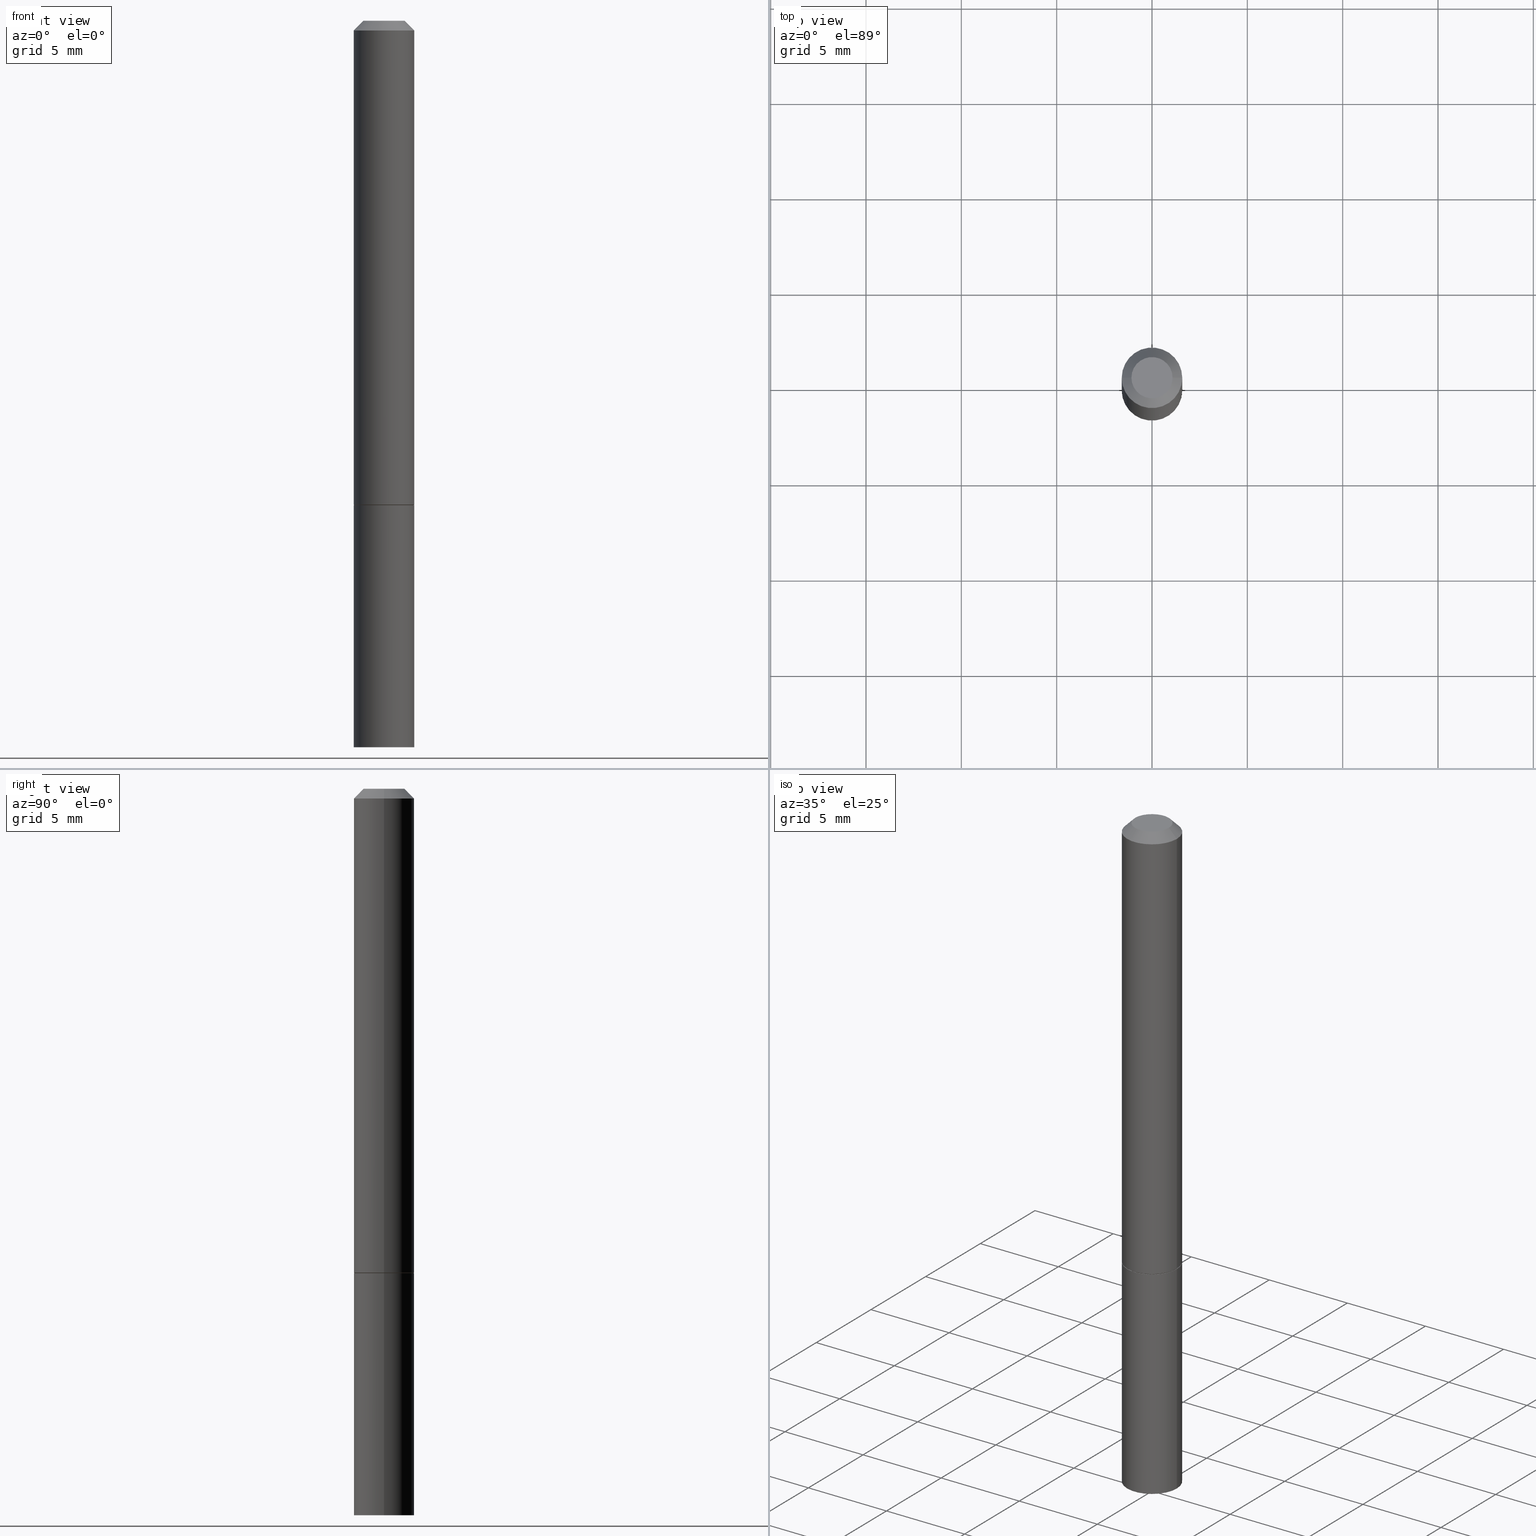
[diagram: canonical four-view strip — front | top / right | iso, engineering-drawing reading convention]
A machine part, canonical four-view strip (front | top / right | iso — engineering-drawing reading convention). The complete STEP part file that produces these views, byte-faithful:
ISO-10303-21;
HEADER;
FILE_DESCRIPTION (( 'STEP AP203' ),
    '1' );
FILE_NAME ('39315.STEP',
    '2024-02-28T00:19:16',
    ( '' ),
    ( '' ),
    'SwSTEP 2.0',
    'SolidWorks 2023',
    '' );
FILE_SCHEMA (( 'CONFIG_CONTROL_DESIGN' ));
ENDSEC;

DATA;
#1 = CYLINDRICAL_SURFACE ( 'NONE', #261, 0.06249999999999991673 ) ;
#2 = SECURITY_CLASSIFICATION ( '', '', #346 ) ;
#3 = DIRECTION ( 'NONE',  ( -1.000000000000000000, 6.982962677686265922E-15, -4.876176775795935793E-29 ) ) ;
#4 = DIRECTION ( 'NONE',  ( 2.438088387897960049E-29, -3.491481338843145188E-15, -1.000000000000000000 ) ) ;
#5 = DESIGN_CONTEXT ( 'detailed design', #12, 'design' ) ;
#6 =( NAMED_UNIT ( * ) PLANE_ANGLE_UNIT ( ) SI_UNIT ( $, .RADIAN. ) );
#7 = CIRCLE ( 'NONE', #83, 0.04249999999999985734 ) ;
#8 = VECTOR ( 'NONE', #91, 39.37007874015748143 ) ;
#9 = FACE_OUTER_BOUND ( 'NONE', #110, .T. ) ;
#10 = DIRECTION ( 'NONE',  ( 1.000000000000000000, 0.000000000000000000, 0.000000000000000000 ) ) ;
#11 = ADVANCED_BREP_SHAPE_REPRESENTATION ( '39315', ( #303, #186, #355 ), #102 ) ;
#12 = APPLICATION_CONTEXT ( 'configuration controlled 3d designs of mechanical parts and assemblies' ) ;
#13 = DATE_AND_TIME ( #321, #197 ) ;
#14 = FACE_OUTER_BOUND ( 'NONE', #298, .T. ) ;
#15 = APPROVAL_PERSON_ORGANIZATION ( #352, #263, #39 ) ;
#16 = PERSON_AND_ORGANIZATION ( #225, #118 ) ;
#17 = ORIENTED_EDGE ( 'NONE', *, *, #38, .F. ) ;
#18 = CALENDAR_DATE ( 2024, 27, 2 ) ;
#19 = ORIENTED_EDGE ( 'NONE', *, *, #159, .T. ) ;
#20 = CIRCLE ( 'NONE', #363, 0.06249999999999984734 ) ;
#21 = ORIENTED_EDGE ( 'NONE', *, *, #79, .T. ) ;
#22 = EDGE_LOOP ( 'NONE', ( #157, #330 ) ) ;
#23 = CARTESIAN_POINT ( 'NONE',  ( 0.06150000000000001299, -3.920933543520851632E-15, -1.000000000000000222 ) ) ;
#24 = VERTEX_POINT ( 'NONE', #155 ) ;
#25 = DATE_AND_TIME ( #183, #47 ) ;
#26 = PLANE ( 'NONE',  #28 ) ;
#27 = AXIS2_PLACEMENT_3D ( 'NONE', #306, #137, #164 ) ;
#28 = AXIS2_PLACEMENT_3D ( 'NONE', #365, #116, #222 ) ;
#29 = CARTESIAN_POINT ( 'NONE',  ( 0.06249999999999997918, -3.924425024859694639E-15, -0.9990000000000002212 ) ) ;
#30 = ADVANCED_FACE ( 'NONE', ( #14 ), #313, .T. ) ;
#31 = DIRECTION ( 'NONE',  ( -2.445468806185136597E-29, 3.491481338843145583E-15, 1.000000000000000000 ) ) ;
#32 = CARTESIAN_POINT ( 'NONE',  ( -0.06150000000000001299, -3.054497556350684369E-15, -1.000000000000000222 ) ) ;
#33 = CARTESIAN_POINT ( 'NONE',  ( -0.04249999999999985734, 3.316907271900963770E-16, -2.561107494060466786E-17 ) ) ;
#34 = CC_DESIGN_SECURITY_CLASSIFICATION ( #2, ( #114 ) ) ;
#35 = CARTESIAN_POINT ( 'NONE',  ( 3.668203209277704895E-29, -5.237222008264718177E-15, -1.500000000000000222 ) ) ;
#36 = CLOSED_SHELL ( 'NONE', ( #30, #103, #148, #171, #304, #142, #131, #286 ) ) ;
#37 = CIRCLE ( 'NONE', #187, 0.06249999999999984734 ) ;
#38 = EDGE_CURVE ( 'NONE', #161, #192, #328, .T. ) ;
#39 = APPROVAL_ROLE ( '' ) ;
#40 = ORIENTED_EDGE ( 'NONE', *, *, #139, .F. ) ;
#41 = AXIS2_PLACEMENT_3D ( 'NONE', #223, #281, #220 ) ;
#42 = ORIENTED_EDGE ( 'NONE', *, *, #307, .F. ) ;
#43 = ORIENTED_EDGE ( 'NONE', *, *, #93, .F. ) ;
#44 = EDGE_LOOP ( 'NONE', ( #356, #104 ) ) ;
#45 = ORIENTED_EDGE ( 'NONE', *, *, #48, .F. ) ;
#46 = ORIENTED_EDGE ( 'NONE', *, *, #337, .F. ) ;
#47 = LOCAL_TIME ( 19, 19, 16.00000000000000000, #152 ) ;
#48 = EDGE_CURVE ( 'NONE', #294, #192, #95, .T. ) ;
#49 = CYLINDRICAL_SURFACE ( 'NONE', #41, 0.06249999999999991673 ) ;
#50 = DATE_AND_TIME ( #297, #301 ) ;
#51 = DIRECTION ( 'NONE',  ( -2.445468806185136597E-29, 3.491481338843145583E-15, 1.000000000000000000 ) ) ;
#52 = CARTESIAN_POINT ( 'NONE',  ( 4.890937612370285420E-31, -6.982962677686308865E-17, -0.02000000000000005246 ) ) ;
#53 = CIRCLE ( 'NONE', #339, 0.06250000000000001388 ) ;
#54 = CARTESIAN_POINT ( 'NONE',  ( -0.06250000000000001388, 4.440892098500627148E-16, -3.074334431409317165E-30 ) ) ;
#55 = CC_DESIGN_PERSON_AND_ORGANIZATION_ASSIGNMENT ( #296, #351, ( #114 ) ) ;
#56 = CARTESIAN_POINT ( 'NONE',  ( 0.06150000000000001299, -3.920933543520851632E-15, -1.000000000000000222 ) ) ;
#57 = DIRECTION ( 'NONE',  ( 1.000000000000000000, -6.982962677686261189E-15, 0.000000000000000000 ) ) ;
#58 = CC_DESIGN_DATE_AND_TIME_ASSIGNMENT ( #50, #290, ( #96 ) ) ;
#59 = CARTESIAN_POINT ( 'NONE',  ( 2.967759138016652702E-16, 0.04249999999999985734, -1.611934943711344082E-16 ) ) ;
#60 =( CONVERSION_BASED_UNIT ( 'INCH', #314 ) LENGTH_UNIT ( ) NAMED_UNIT ( #252 ) );
#61 = DIRECTION ( 'NONE',  ( 1.000000000000000000, -6.982962677686269077E-15, 0.000000000000000000 ) ) ;
#62 = DIRECTION ( 'NONE',  ( 1.000000000000000000, -6.982962677686266711E-15, 4.876176775795935793E-29 ) ) ;
#63 = VECTOR ( 'NONE', #143, 39.37007874015748143 ) ;
#64 = PERSON_AND_ORGANIZATION ( #225, #118 ) ;
#65 = ORIENTED_EDGE ( 'NONE', *, *, #221, .F. ) ;
#66 = APPROVAL_STATUS ( 'not_yet_approved' ) ;
#67 =( NAMED_UNIT ( * ) SI_UNIT ( $, .STERADIAN. ) SOLID_ANGLE_UNIT ( ) );
#68 = EDGE_LOOP ( 'NONE', ( #107, #19, #65, #347 ) ) ;
#69 = AXIS2_PLACEMENT_3D ( 'NONE', #119, #312, #89 ) ;
#70 = APPLICATION_PROTOCOL_DEFINITION ( 'international standard', 'config_control_design', 1994, #12 ) ;
#71 = ORIENTED_EDGE ( 'NONE', *, *, #90, .T. ) ;
#72 = ORIENTED_EDGE ( 'NONE', *, *, #316, .F. ) ;
#73 = CARTESIAN_POINT ( 'NONE',  ( -0.06249999999999984734, 3.666055405785274837E-16, -0.02000000000000005246 ) ) ;
#74 = AXIS2_PLACEMENT_3D ( 'NONE', #193, #278, #335 ) ;
#75 = CC_DESIGN_PERSON_AND_ORGANIZATION_ASSIGNMENT ( #64, #361, ( #243 ) ) ;
#76 = VECTOR ( 'NONE', #287, 39.37007874015748143 ) ;
#77 = CARTESIAN_POINT ( 'NONE',  ( 4.890937612370285420E-31, -6.982962677686308865E-17, -0.02000000000000005246 ) ) ;
#78 = EDGE_LOOP ( 'NONE', ( #320, #105 ) ) ;
#79 = EDGE_CURVE ( 'NONE', #82, #161, #109, .T. ) ;
#80 = FACE_OUTER_BOUND ( 'NONE', #188, .T. ) ;
#81 = DIRECTION ( 'NONE',  ( 0.7071067811865595631, -2.468850131082382884E-15, 0.7071067811865354713 ) ) ;
#82 = VERTEX_POINT ( 'NONE', #56 ) ;
#83 = AXIS2_PLACEMENT_3D ( 'NONE', #275, #141, #194 ) ;
#84 = CIRCLE ( 'NONE', #309, 0.06249999999999997918 ) ;
#85 = DIRECTION ( 'NONE',  ( 2.445468806185136597E-29, -3.491481338843145583E-15, -1.000000000000000000 ) ) ;
#86 = CYLINDRICAL_SURFACE ( 'NONE', #279, 0.06250000000000001388 ) ;
#87 = DIRECTION ( 'NONE',  ( -2.445468806185136597E-29, 3.491481338843145583E-15, 1.000000000000000000 ) ) ;
#88 = CARTESIAN_POINT ( 'NONE',  ( -0.06249999999999991673, 4.440892098500620245E-16, -3.074334431409311910E-30 ) ) ;
#89 = DIRECTION ( 'NONE',  ( 1.000000000000000000, -6.982962677686261189E-15, 0.000000000000000000 ) ) ;
#90 = EDGE_CURVE ( 'NONE', #357, #299, #305, .T. ) ;
#91 = DIRECTION ( 'NONE',  ( -0.7071067811865469066, 2.468850131082250355E-15, -0.7071067811865481278 ) ) ;
#92 = CIRCLE ( 'NONE', #74, 0.06150000000000001299 ) ;
#93 = EDGE_CURVE ( 'NONE', #357, #82, #92, .T. ) ;
#94 = DATE_TIME_ROLE ( 'classification_date' ) ;
#95 = LINE ( 'NONE', #209, #101 ) ;
#96 = PRODUCT_DEFINITION ( 'UNKNOWN', '', #114, #5 ) ;
#97 = PERSON_AND_ORGANIZATION_ROLE ( 'classification_officer' ) ;
#98 = DIRECTION ( 'NONE',  ( 1.000000000000000000, -6.982962677686268288E-15, 0.000000000000000000 ) ) ;
#99 = APPROVAL_STATUS ( 'not_yet_approved' ) ;
#100 = ORIENTED_EDGE ( 'NONE', *, *, #329, .T. ) ;
#101 = VECTOR ( 'NONE', #322, 39.37007874015748143 ) ;
#102 =( GEOMETRIC_REPRESENTATION_CONTEXT ( 3 ) GLOBAL_UNCERTAINTY_ASSIGNED_CONTEXT ( ( #207 ) ) GLOBAL_UNIT_ASSIGNED_CONTEXT ( ( #60, #6, #67 ) ) REPRESENTATION_CONTEXT ( 'NONE', 'WORKASPACE' ) );
#103 = ADVANCED_FACE ( 'NONE', ( #80 ), #49, .T. ) ;
#104 = ORIENTED_EDGE ( 'NONE', *, *, #282, .F. ) ;
#105 = ORIENTED_EDGE ( 'NONE', *, *, #337, .T. ) ;
#106 = CYLINDRICAL_SURFACE ( 'NONE', #27, 0.06250000000000001388 ) ;
#107 = ORIENTED_EDGE ( 'NONE', *, *, #237, .T. ) ;
#108 = APPLICATION_CONTEXT ( 'configuration controlled 3d designs of mechanical parts and assemblies' ) ;
#109 = LINE ( 'NONE', #23, #185 ) ;
#110 = EDGE_LOOP ( 'NONE', ( #42, #216, #212, #291 ) ) ;
#111 = ADVANCED_FACE ( 'NONE', ( #338 ), #106, .T. ) ;
#112 = CLOSED_SHELL ( 'NONE', ( #267, #342, #199, #111 ) ) ;
#113 = PERSON_AND_ORGANIZATION ( #225, #118 ) ;
#114 = PRODUCT_DEFINITION_FORMATION_WITH_SPECIFIED_SOURCE ( 'ANY', '', #243, .NOT_KNOWN. ) ;
#115 = CARTESIAN_POINT ( 'NONE',  ( 2.445468806185136877E-29, -3.491481338843145977E-15, -1.000000000000000222 ) ) ;
#116 = DIRECTION ( 'NONE',  ( 2.438088387897960049E-29, -3.491481338843145188E-15, -1.000000000000000000 ) ) ;
#117 = DIRECTION ( 'NONE',  ( -2.445468806185136597E-29, 3.491481338843145583E-15, 1.000000000000000000 ) ) ;
#118 = ORGANIZATION ( 'UNSPECIFIED', 'UNSPECIFIED', '' ) ;
#119 = CARTESIAN_POINT ( 'NONE',  ( 3.668203209277704895E-29, -5.237222008264718177E-15, -1.500000000000000222 ) ) ;
#120 = EDGE_CURVE ( 'NONE', #299, #161, #144, .T. ) ;
#121 = DIRECTION ( 'NONE',  ( 1.000000000000000000, -6.982962677686265133E-15, 0.000000000000000000 ) ) ;
#122 = DIRECTION ( 'NONE',  ( -1.000000000000000000, 6.982962677686265922E-15, -4.876176775795935793E-29 ) ) ;
#123 = AXIS2_PLACEMENT_3D ( 'NONE', #170, #51, #218 ) ;
#124 = AXIS2_PLACEMENT_3D ( 'NONE', #364, #358, #196 ) ;
#125 = CARTESIAN_POINT ( 'NONE',  ( 6.263108486011318528E-46, -8.942059022282683748E-32, -2.561107494060246767E-17 ) ) ;
#126 = PERSON_AND_ORGANIZATION_ROLE ( 'creator' ) ;
#127 = PERSON_AND_ORGANIZATION ( #225, #118 ) ;
#128 = CARTESIAN_POINT ( 'NONE',  ( 2.445468806185136877E-29, -3.491481338843145977E-15, -1.000000000000000222 ) ) ;
#129 = COORDINATED_UNIVERSAL_TIME_OFFSET ( 5, 0, .BEHIND. ) ;
#130 = ORIENTED_EDGE ( 'NONE', *, *, #79, .F. ) ;
#131 = ADVANCED_FACE ( 'NONE', ( #198 ), #215, .F. ) ;
#132 = VERTEX_POINT ( 'NONE', #366 ) ;
#133 = CONICAL_SURFACE ( 'NONE', #354, 0.06249999999999984734, 0.7853981633974473908 ) ;
#134 = AXIS2_PLACEMENT_3D ( 'NONE', #277, #140, #280 ) ;
#135 = CARTESIAN_POINT ( 'NONE',  ( 0.06249999999999984734, -4.986107516375827389E-16, -0.02000000000000005246 ) ) ;
#136 = APPROVAL_DATE_TIME ( #25, #228 ) ;
#137 = DIRECTION ( 'NONE',  ( -2.445468806185136597E-29, 3.491481338843145583E-15, 1.000000000000000000 ) ) ;
#138 = VECTOR ( 'NONE', #251, 39.37007874015748143 ) ;
#139 = EDGE_CURVE ( 'NONE', #235, #294, #7, .T. ) ;
#140 = DIRECTION ( 'NONE',  ( -2.445468806185136597E-29, 3.491481338843145583E-15, 1.000000000000000000 ) ) ;
#141 = DIRECTION ( 'NONE',  ( -2.445468806185136597E-29, 3.491481338843145583E-15, 1.000000000000000000 ) ) ;
#142 = ADVANCED_FACE ( 'NONE', ( #172 ), #201, .T. ) ;
#143 = DIRECTION ( 'NONE',  ( -2.445468806185136877E-29, 3.491481338843145188E-15, 1.000000000000000000 ) ) ;
#144 = CIRCLE ( 'NONE', #123, 0.06249999999999997918 ) ;
#145 = AXIS2_PLACEMENT_3D ( 'NONE', #35, #87, #57 ) ;
#146 = CARTESIAN_POINT ( 'NONE',  ( 4.890937612370285420E-31, -6.982962677686308865E-17, -0.02000000000000005246 ) ) ;
#147 = FACE_OUTER_BOUND ( 'NONE', #78, .T. ) ;
#148 = ADVANCED_FACE ( 'NONE', ( #253 ), #133, .T. ) ;
#149 = DIRECTION ( 'NONE',  ( 2.438088387897960049E-29, -3.491481338843145188E-15, -1.000000000000000000 ) ) ;
#150 = CARTESIAN_POINT ( 'NONE',  ( 0.04249999999999985734, -3.950909582714359557E-16, -2.561107494060004870E-17 ) ) ;
#151 = CIRCLE ( 'NONE', #69, 0.06250000000000001388 ) ;
#152 = COORDINATED_UNIVERSAL_TIME_OFFSET ( 5, 0, .BEHIND. ) ;
#153 = ORIENTED_EDGE ( 'NONE', *, *, #93, .T. ) ;
#154 = MECHANICAL_CONTEXT ( 'NONE', #108, 'mechanical' ) ;
#155 = CARTESIAN_POINT ( 'NONE',  ( -0.06250000000000001388, -3.920262463703869855E-15, -1.000000000000000222 ) ) ;
#156 = CONICAL_SURFACE ( 'NONE', #124, 0.06249999999999984734, 0.7853981633974473908 ) ;
#157 = ORIENTED_EDGE ( 'NONE', *, *, #221, .T. ) ;
#158 = COORDINATED_UNIVERSAL_TIME_OFFSET ( 5, 0, .BEHIND. ) ;
#159 = EDGE_CURVE ( 'NONE', #214, #24, #249, .T. ) ;
#160 = CARTESIAN_POINT ( 'NONE',  ( 0.06249999999999991673, -4.364351673553910778E-16, 3.047610484872455667E-30 ) ) ;
#161 = VERTEX_POINT ( 'NONE', #29 ) ;
#162 = ORIENTED_EDGE ( 'NONE', *, *, #48, .T. ) ;
#163 = CC_DESIGN_APPROVAL ( #241, ( #96 ) ) ;
#164 = DIRECTION ( 'NONE',  ( 1.000000000000000000, -6.982962677686267499E-15, 4.876176775795935793E-29 ) ) ;
#165 = DATE_AND_TIME ( #18, #205 ) ;
#166 = DIRECTION ( 'NONE',  ( -2.445468806185136597E-29, 3.491481338843145583E-15, 1.000000000000000000 ) ) ;
#167 = PRODUCT_RELATED_PRODUCT_CATEGORY ( 'detail', '', ( #243 ) ) ;
#168 = DIRECTION ( 'NONE',  ( -1.000000000000000000, 6.982962677686266711E-15, 0.000000000000000000 ) ) ;
#169 = VECTOR ( 'NONE', #213, 39.37007874015748143 ) ;
#170 = CARTESIAN_POINT ( 'NONE',  ( 2.443023337378951835E-29, -3.487989857504302970E-15, -0.9990000000000002212 ) ) ;
#171 = ADVANCED_FACE ( 'NONE', ( #359 ), #156, .T. ) ;
#172 = FACE_OUTER_BOUND ( 'NONE', #236, .T. ) ;
#173 = FACE_OUTER_BOUND ( 'NONE', #44, .T. ) ;
#174 = EDGE_CURVE ( 'NONE', #192, #182, #37, .T. ) ;
#175 = APPROVAL_PERSON_ORGANIZATION ( #16, #241, #184 ) ;
#176 = FACE_OUTER_BOUND ( 'NONE', #68, .T. ) ;
#177 = EDGE_CURVE ( 'NONE', #24, #132, #211, .T. ) ;
#178 = CARTESIAN_POINT ( 'NONE',  ( 0.000000000000000000, 0.000000000000000000, 0.000000000000000000 ) ) ;
#179 = CARTESIAN_POINT ( 'NONE',  ( 0.06250000000000001388, -5.673657175620109846E-15, -1.500000000000000222 ) ) ;
#180 = LINE ( 'NONE', #341, #63 ) ;
#181 = AXIS2_PLACEMENT_3D ( 'NONE', #59, #4, #122 ) ;
#182 = VERTEX_POINT ( 'NONE', #73 ) ;
#183 = CALENDAR_DATE ( 2024, 27, 2 ) ;
#184 = APPROVAL_ROLE ( '' ) ;
#185 = VECTOR ( 'NONE', #81, 39.37007874015748143 ) ;
#186 = MANIFOLD_SOLID_BREP ( 'Body-Move/Copy2[2]', #36 ) ;
#187 = AXIS2_PLACEMENT_3D ( 'NONE', #52, #166, #332 ) ;
#188 = EDGE_LOOP ( 'NONE', ( #333, #206, #266, #17 ) ) ;
#189 = CALENDAR_DATE ( 2024, 27, 2 ) ;
#190 = ORIENTED_EDGE ( 'NONE', *, *, #159, .F. ) ;
#191 = CC_DESIGN_PERSON_AND_ORGANIZATION_ASSIGNMENT ( #233, #97, ( #2 ) ) ;
#192 = VERTEX_POINT ( 'NONE', #135 ) ;
#193 = CARTESIAN_POINT ( 'NONE',  ( 2.445468806185136877E-29, -3.491481338843145977E-15, -1.000000000000000222 ) ) ;
#194 = DIRECTION ( 'NONE',  ( 1.000000000000000000, -6.982962677686265922E-15, 4.879498284297460242E-29 ) ) ;
#195 = DIRECTION ( 'NONE',  ( 1.000000000000000000, -6.982962677686265922E-15, 4.876176775795935793E-29 ) ) ;
#196 = DIRECTION ( 'NONE',  ( -1.000000000000000000, 6.982962677686266711E-15, 0.000000000000000000 ) ) ;
#197 = LOCAL_TIME ( 19, 19, 16.00000000000000000, #129 ) ;
#198 = FACE_OUTER_BOUND ( 'NONE', #240, .T. ) ;
#199 = ADVANCED_FACE ( 'NONE', ( #250 ), #26, .F. ) ;
#200 = PLANE ( 'NONE',  #181 ) ;
#201 = CONICAL_SURFACE ( 'NONE', #260, 0.06150000000000001299, 0.7853981633974653764 ) ;
#202 = DIRECTION ( 'NONE',  ( 1.000000000000000000, -6.982962677686265922E-15, 4.879498284297460242E-29 ) ) ;
#203 = DIRECTION ( 'NONE',  ( -2.445468806185136597E-29, 3.491481338843145583E-15, 1.000000000000000000 ) ) ;
#204 = CARTESIAN_POINT ( 'NONE',  ( -0.06249999999999984734, 3.666055405785274837E-16, -0.02000000000000005246 ) ) ;
#205 = LOCAL_TIME ( 19, 19, 16.00000000000000000, #210 ) ;
#206 = ORIENTED_EDGE ( 'NONE', *, *, #307, .T. ) ;
#207 = UNCERTAINTY_MEASURE_WITH_UNIT (LENGTH_MEASURE( 1.000000000000000082E-05 ), #60, 'distance_accuracy_value', 'NONE');
#208 = APPROVAL_DATE_TIME ( #13, #263 ) ;
#209 = CARTESIAN_POINT ( 'NONE',  ( 0.06249999999999984734, -4.986107516375827389E-16, -0.02000000000000005246 ) ) ;
#210 = COORDINATED_UNIVERSAL_TIME_OFFSET ( 5, 0, .BEHIND. ) ;
#211 = CIRCLE ( 'NONE', #134, 0.06250000000000001388 ) ;
#212 = ORIENTED_EDGE ( 'NONE', *, *, #38, .T. ) ;
#213 = DIRECTION ( 'NONE',  ( -2.445468806185136877E-29, 3.491481338843145188E-15, 1.000000000000000000 ) ) ;
#214 = VERTEX_POINT ( 'NONE', #336 ) ;
#215 = PLANE ( 'NONE',  #245 ) ;
#216 = ORIENTED_EDGE ( 'NONE', *, *, #120, .T. ) ;
#217 = EDGE_CURVE ( 'NONE', #82, #357, #246, .T. ) ;
#218 = DIRECTION ( 'NONE',  ( 1.000000000000000000, -6.982962677686265133E-15, 0.000000000000000000 ) ) ;
#219 = CC_DESIGN_APPROVAL ( #263, ( #114 ) ) ;
#220 = DIRECTION ( 'NONE',  ( 1.000000000000000000, -6.982962677686266711E-15, 4.876176775795935793E-29 ) ) ;
#221 = EDGE_CURVE ( 'NONE', #132, #24, #53, .T. ) ;
#222 = DIRECTION ( 'NONE',  ( -1.000000000000000000, 6.982962677686265922E-15, -4.876176775795935793E-29 ) ) ;
#223 = CARTESIAN_POINT ( 'NONE',  ( 0.000000000000000000, 0.000000000000000000, 0.000000000000000000 ) ) ;
#224 = CIRCLE ( 'NONE', #288, 0.04249999999999985734 ) ;
#225 = PERSON ( 'UNSPECIFIED', 'UNSPECIFIED', 'UNSPECIFIED', ('UNSPECIFIED'), ('UNSPECIFIED'), ('UNSPECIFIED') ) ;
#226 = CARTESIAN_POINT ( 'NONE',  ( -0.06150000000000001299, -3.049199102002462756E-15, -1.000000000000000222 ) ) ;
#227 = CARTESIAN_POINT ( 'NONE',  ( 2.445468806185136877E-29, -3.491481338843145977E-15, -1.000000000000000222 ) ) ;
#228 = APPROVAL ( #66, 'UNSPECIFIED' ) ;
#229 = DIRECTION ( 'NONE',  ( -2.445468806185136597E-29, 3.491481338843145583E-15, 1.000000000000000000 ) ) ;
#230 = AXIS2_PLACEMENT_3D ( 'NONE', #308, #31, #262 ) ;
#231 = CARTESIAN_POINT ( 'NONE',  ( -0.06249999999999997918, -1.334820532290518743E-15, -0.9990000000000002212 ) ) ;
#232 = CARTESIAN_POINT ( 'NONE',  ( 4.364351673554284500E-16, 0.06249999999999478195, -1.500000000000000444 ) ) ;
#233 = PERSON_AND_ORGANIZATION ( #225, #118 ) ;
#234 = SHAPE_DEFINITION_REPRESENTATION ( #331, #11 ) ;
#235 = VERTEX_POINT ( 'NONE', #33 ) ;
#236 = EDGE_LOOP ( 'NONE', ( #244, #153, #21, #258 ) ) ;
#237 = EDGE_CURVE ( 'NONE', #269, #214, #151, .T. ) ;
#238 = DATE_AND_TIME ( #189, #319 ) ;
#239 = DIRECTION ( 'NONE',  ( -2.445468806185136597E-29, 3.491481338843145583E-15, 1.000000000000000000 ) ) ;
#240 = EDGE_LOOP ( 'NONE', ( #324, #43 ) ) ;
#241 = APPROVAL ( #349, 'UNSPECIFIED' ) ;
#242 = APPROVAL_DATE_TIME ( #238, #241 ) ;
#243 = PRODUCT ( '39315', '39315', '', ( #154 ) ) ;
#244 = ORIENTED_EDGE ( 'NONE', *, *, #90, .F. ) ;
#245 = AXIS2_PLACEMENT_3D ( 'NONE', #115, #310, #195 ) ;
#246 = CIRCLE ( 'NONE', #230, 0.06150000000000001299 ) ;
#247 = ORIENTED_EDGE ( 'NONE', *, *, #343, .T. ) ;
#248 = ORIENTED_EDGE ( 'NONE', *, *, #177, .F. ) ;
#249 = LINE ( 'NONE', #54, #138 ) ;
#250 = FACE_OUTER_BOUND ( 'NONE', #22, .T. ) ;
#251 = DIRECTION ( 'NONE',  ( -2.445468806185136877E-29, 3.491481338843145188E-15, 1.000000000000000000 ) ) ;
#252 = DIMENSIONAL_EXPONENTS ( 1.000000000000000000, 0.000000000000000000, 0.000000000000000000, 0.000000000000000000, 0.000000000000000000, 0.000000000000000000, 0.000000000000000000 ) ;
#253 = FACE_OUTER_BOUND ( 'NONE', #353, .T. ) ;
#254 = CARTESIAN_POINT ( 'NONE',  ( 2.445468806185136877E-29, -3.491481338843145977E-15, -1.000000000000000222 ) ) ;
#255 = DIRECTION ( 'NONE',  ( -2.445468806185136597E-29, 3.491481338843145583E-15, 1.000000000000000000 ) ) ;
#256 = CC_DESIGN_APPROVAL ( #228, ( #2 ) ) ;
#257 = DIRECTION ( 'NONE',  ( -2.445468806185136597E-29, 3.491481338843145583E-15, 1.000000000000000000 ) ) ;
#258 = ORIENTED_EDGE ( 'NONE', *, *, #120, .F. ) ;
#259 = DIRECTION ( 'NONE',  ( -2.445468806185136597E-29, 3.491481338843145583E-15, 1.000000000000000000 ) ) ;
#260 = AXIS2_PLACEMENT_3D ( 'NONE', #254, #117, #334 ) ;
#261 = AXIS2_PLACEMENT_3D ( 'NONE', #311, #257, #62 ) ;
#262 = DIRECTION ( 'NONE',  ( 1.000000000000000000, -6.982962677686268288E-15, 0.000000000000000000 ) ) ;
#263 = APPROVAL ( #99, 'UNSPECIFIED' ) ;
#264 = PERSON_AND_ORGANIZATION ( #225, #118 ) ;
#265 = APPLICATION_PROTOCOL_DEFINITION ( 'international standard', 'config_control_design', 1994, #108 ) ;
#266 = ORIENTED_EDGE ( 'NONE', *, *, #174, .F. ) ;
#267 = ADVANCED_FACE ( 'NONE', ( #176 ), #86, .T. ) ;
#268 = COORDINATED_UNIVERSAL_TIME_OFFSET ( 5, 0, .BEHIND. ) ;
#269 = VERTEX_POINT ( 'NONE', #179 ) ;
#270 = ORIENTED_EDGE ( 'NONE', *, *, #282, .T. ) ;
#271 = PERSON_AND_ORGANIZATION_ROLE ( 'design_supplier' ) ;
#272 = EDGE_LOOP ( 'NONE', ( #190, #270, #247, #248 ) ) ;
#273 = ORIENTED_EDGE ( 'NONE', *, *, #217, .T. ) ;
#274 = ORIENTED_EDGE ( 'NONE', *, *, #329, .F. ) ;
#275 = CARTESIAN_POINT ( 'NONE',  ( 6.263108486011318528E-46, -8.942059022282683748E-32, -2.561107494060246767E-17 ) ) ;
#276 = APPROVAL_ROLE ( '' ) ;
#277 = CARTESIAN_POINT ( 'NONE',  ( 2.445468806185136877E-29, -3.491481338843145977E-15, -1.000000000000000222 ) ) ;
#278 = DIRECTION ( 'NONE',  ( -2.445468806185136597E-29, 3.491481338843145583E-15, 1.000000000000000000 ) ) ;
#279 = AXIS2_PLACEMENT_3D ( 'NONE', #178, #229, #315 ) ;
#280 = DIRECTION ( 'NONE',  ( 1.000000000000000000, -6.982962677686269077E-15, 0.000000000000000000 ) ) ;
#281 = DIRECTION ( 'NONE',  ( -2.445468806185136597E-29, 3.491481338843145583E-15, 1.000000000000000000 ) ) ;
#282 = EDGE_CURVE ( 'NONE', #214, #269, #326, .T. ) ;
#283 =( LENGTH_UNIT ( ) NAMED_UNIT ( * ) SI_UNIT ( $, .METRE. ) );
#284 = DIRECTION ( 'NONE',  ( -2.445468806185136597E-29, 3.491481338843145583E-15, 1.000000000000000000 ) ) ;
#285 = LINE ( 'NONE', #204, #8 ) ;
#286 = ADVANCED_FACE ( 'NONE', ( #147 ), #200, .F. ) ;
#287 = DIRECTION ( 'NONE',  ( -2.445468806185136877E-29, 3.491481338843145188E-15, 1.000000000000000000 ) ) ;
#288 = AXIS2_PLACEMENT_3D ( 'NONE', #125, #203, #202 ) ;
#289 = CARTESIAN_POINT ( 'NONE',  ( 2.443023337378951835E-29, -3.487989857504302970E-15, -0.9990000000000002212 ) ) ;
#290 = DATE_TIME_ROLE ( 'creation_date' ) ;
#291 = ORIENTED_EDGE ( 'NONE', *, *, #300, .F. ) ;
#292 = CC_DESIGN_PERSON_AND_ORGANIZATION_ASSIGNMENT ( #264, #271, ( #114 ) ) ;
#293 = EDGE_LOOP ( 'NONE', ( #45, #40, #100, #325 ) ) ;
#294 = VERTEX_POINT ( 'NONE', #150 ) ;
#295 = APPROVAL_PERSON_ORGANIZATION ( #127, #228, #276 ) ;
#296 = PERSON_AND_ORGANIZATION ( #225, #118 ) ;
#297 = CALENDAR_DATE ( 2024, 27, 2 ) ;
#298 = EDGE_LOOP ( 'NONE', ( #273, #71, #72, #130 ) ) ;
#299 = VERTEX_POINT ( 'NONE', #231 ) ;
#300 = EDGE_CURVE ( 'NONE', #182, #192, #20, .T. ) ;
#301 = LOCAL_TIME ( 19, 19, 16.00000000000000000, #268 ) ;
#302 = DIRECTION ( 'NONE',  ( -0.7071067811865595631, 7.493145998870398336E-15, 0.7071067811865354713 ) ) ;
#303 = MANIFOLD_SOLID_BREP ( 'Body-Move/Copy2[1]', #112 ) ;
#304 = ADVANCED_FACE ( 'NONE', ( #9 ), #1, .T. ) ;
#305 = LINE ( 'NONE', #32, #362 ) ;
#306 = CARTESIAN_POINT ( 'NONE',  ( 0.000000000000000000, 0.000000000000000000, 0.000000000000000000 ) ) ;
#307 = EDGE_CURVE ( 'NONE', #299, #182, #344, .T. ) ;
#308 = CARTESIAN_POINT ( 'NONE',  ( 2.445468806185136877E-29, -3.491481338843145977E-15, -1.000000000000000222 ) ) ;
#309 = AXIS2_PLACEMENT_3D ( 'NONE', #289, #255, #121 ) ;
#310 = DIRECTION ( 'NONE',  ( -2.438088387897960049E-29, 3.491481338843145188E-15, 1.000000000000000000 ) ) ;
#311 = CARTESIAN_POINT ( 'NONE',  ( 0.000000000000000000, 0.000000000000000000, 0.000000000000000000 ) ) ;
#312 = DIRECTION ( 'NONE',  ( -2.445468806185136597E-29, 3.491481338843145583E-15, 1.000000000000000000 ) ) ;
#313 = CONICAL_SURFACE ( 'NONE', #318, 0.06150000000000001299, 0.7853981633974653764 ) ;
#314 = LENGTH_MEASURE_WITH_UNIT ( LENGTH_MEASURE( 0.02539999999999999897 ), #283 );
#315 = DIRECTION ( 'NONE',  ( 1.000000000000000000, -6.982962677686267499E-15, 4.876176775795935793E-29 ) ) ;
#316 = EDGE_CURVE ( 'NONE', #161, #299, #84, .T. ) ;
#317 = PLANE ( 'NONE',  #348 ) ;
#318 = AXIS2_PLACEMENT_3D ( 'NONE', #128, #239, #98 ) ;
#319 = LOCAL_TIME ( 19, 19, 16.00000000000000000, #158 ) ;
#320 = ORIENTED_EDGE ( 'NONE', *, *, #139, .T. ) ;
#321 = CALENDAR_DATE ( 2024, 27, 2 ) ;
#322 = DIRECTION ( 'NONE',  ( 0.7071067811865469066, -7.319954787623254468E-15, -0.7071067811865481278 ) ) ;
#323 = DIRECTION ( 'NONE',  ( 0.000000000000000000, 0.000000000000000000, 1.000000000000000000 ) ) ;
#324 = ORIENTED_EDGE ( 'NONE', *, *, #217, .F. ) ;
#325 = ORIENTED_EDGE ( 'NONE', *, *, #300, .T. ) ;
#326 = CIRCLE ( 'NONE', #145, 0.06250000000000001388 ) ;
#327 = CARTESIAN_POINT ( 'NONE',  ( 0.000000000000000000, 0.000000000000000000, 0.000000000000000000 ) ) ;
#328 = LINE ( 'NONE', #160, #169 ) ;
#329 = EDGE_CURVE ( 'NONE', #235, #182, #285, .T. ) ;
#330 = ORIENTED_EDGE ( 'NONE', *, *, #177, .T. ) ;
#331 = PRODUCT_DEFINITION_SHAPE ( 'NONE', 'NONE',  #96 ) ;
#332 = DIRECTION ( 'NONE',  ( 1.000000000000000000, -6.982962677686266711E-15, 0.000000000000000000 ) ) ;
#333 = ORIENTED_EDGE ( 'NONE', *, *, #316, .T. ) ;
#334 = DIRECTION ( 'NONE',  ( 1.000000000000000000, -6.982962677686268288E-15, 0.000000000000000000 ) ) ;
#335 = DIRECTION ( 'NONE',  ( 1.000000000000000000, -6.982962677686268288E-15, 0.000000000000000000 ) ) ;
#336 = CARTESIAN_POINT ( 'NONE',  ( -0.06250000000000001388, -3.920262463703869855E-15, -1.500000000000000222 ) ) ;
#337 = EDGE_CURVE ( 'NONE', #294, #235, #224, .T. ) ;
#338 = FACE_OUTER_BOUND ( 'NONE', #272, .T. ) ;
#339 = AXIS2_PLACEMENT_3D ( 'NONE', #227, #259, #61 ) ;
#340 = CC_DESIGN_DATE_AND_TIME_ASSIGNMENT ( #165, #94, ( #2 ) ) ;
#341 = CARTESIAN_POINT ( 'NONE',  ( 0.06250000000000001388, -4.364351673553918173E-16, 3.047610484872460571E-30 ) ) ;
#342 = ADVANCED_FACE ( 'NONE', ( #173 ), #317, .T. ) ;
#343 = EDGE_CURVE ( 'NONE', #269, #132, #180, .T. ) ;
#344 = LINE ( 'NONE', #88, #76 ) ;
#345 = DIRECTION ( 'NONE',  ( 1.000000000000000000, -6.982962677686266711E-15, 0.000000000000000000 ) ) ;
#346 = SECURITY_CLASSIFICATION_LEVEL ( 'unclassified' ) ;
#347 = ORIENTED_EDGE ( 'NONE', *, *, #343, .F. ) ;
#348 = AXIS2_PLACEMENT_3D ( 'NONE', #232, #149, #3 ) ;
#349 = APPROVAL_STATUS ( 'not_yet_approved' ) ;
#350 = ORIENTED_EDGE ( 'NONE', *, *, #174, .T. ) ;
#351 = PERSON_AND_ORGANIZATION_ROLE ( 'creator' ) ;
#352 = PERSON_AND_ORGANIZATION ( #225, #118 ) ;
#353 = EDGE_LOOP ( 'NONE', ( #46, #162, #350, #274 ) ) ;
#354 = AXIS2_PLACEMENT_3D ( 'NONE', #77, #85, #168 ) ;
#355 = AXIS2_PLACEMENT_3D ( 'NONE', #327, #323, #10 ) ;
#356 = ORIENTED_EDGE ( 'NONE', *, *, #237, .F. ) ;
#357 = VERTEX_POINT ( 'NONE', #226 ) ;
#358 = DIRECTION ( 'NONE',  ( 2.445468806185136597E-29, -3.491481338843145583E-15, -1.000000000000000000 ) ) ;
#359 = FACE_OUTER_BOUND ( 'NONE', #293, .T. ) ;
#360 = CC_DESIGN_PERSON_AND_ORGANIZATION_ASSIGNMENT ( #113, #126, ( #96 ) ) ;
#361 = PERSON_AND_ORGANIZATION_ROLE ( 'design_owner' ) ;
#362 = VECTOR ( 'NONE', #302, 39.37007874015748143 ) ;
#363 = AXIS2_PLACEMENT_3D ( 'NONE', #146, #284, #345 ) ;
#364 = CARTESIAN_POINT ( 'NONE',  ( 4.890937612370285420E-31, -6.982962677686308865E-17, -0.02000000000000005246 ) ) ;
#365 = CARTESIAN_POINT ( 'NONE',  ( 4.364351673554161734E-16, 0.06249999999999652361, -1.000000000000000444 ) ) ;
#366 = CARTESIAN_POINT ( 'NONE',  ( 0.06250000000000001388, -3.927916506198537646E-15, -1.000000000000000222 ) ) ;
ENDSEC;
END-ISO-10303-21;
